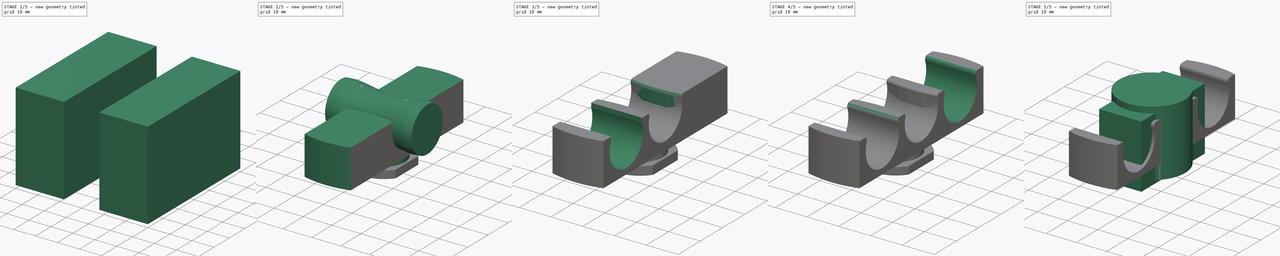
[diagram: build sequence overview — one tinted view per stage of 5, left to right]
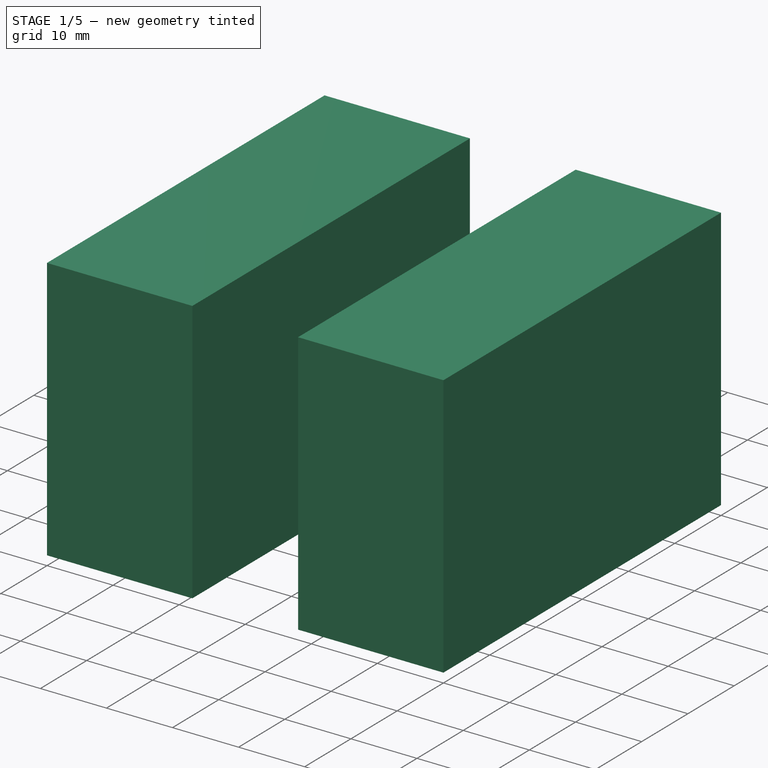
[diagram: stage 1 of 5 — iso view after this stage's code; geometry added in this stage tinted green]
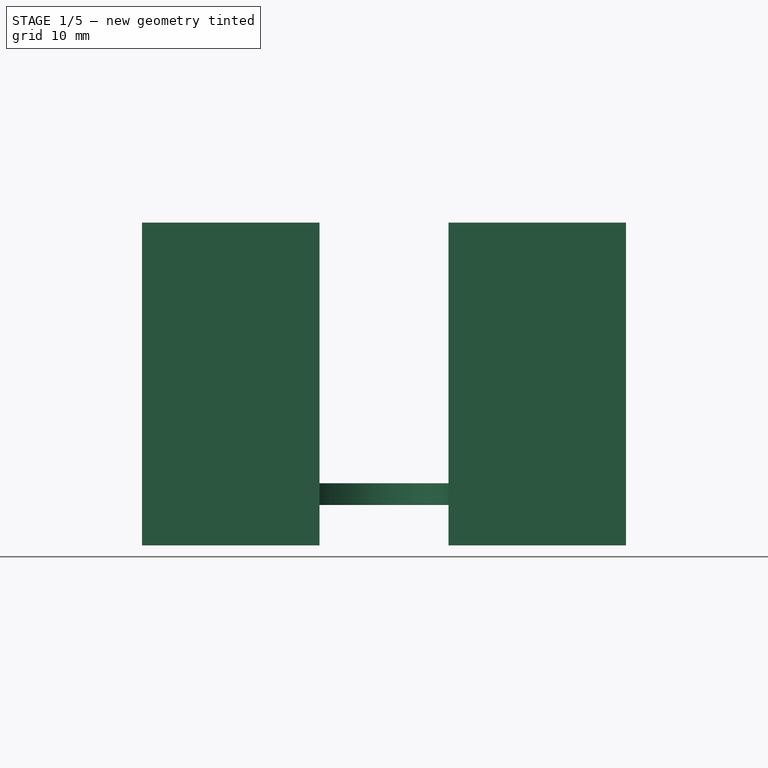
[diagram: stage 1 of 5 — front view after this stage's code; geometry added in this stage tinted green]
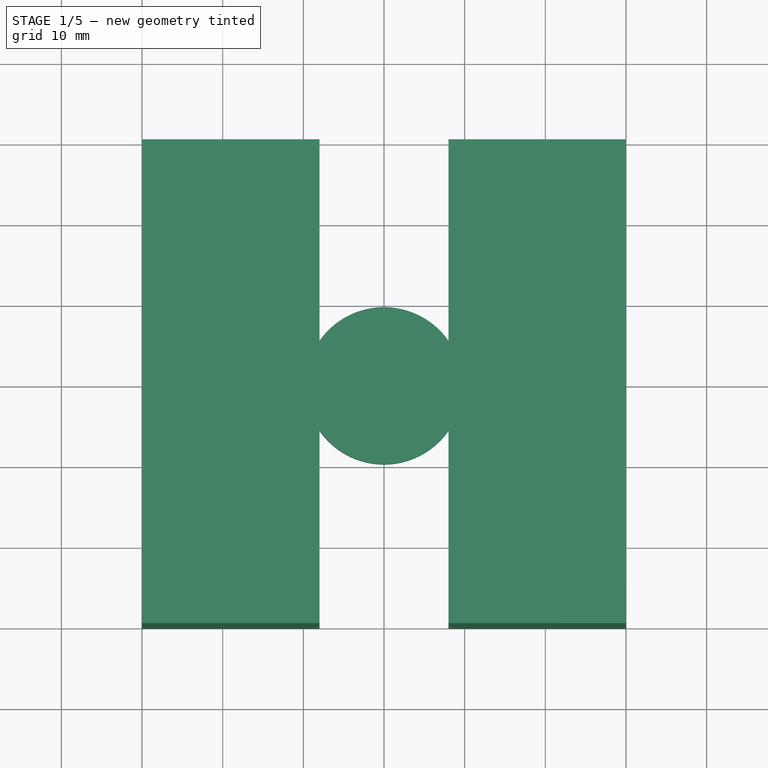
[diagram: stage 1 of 5 — top view after this stage's code; geometry added in this stage tinted green]
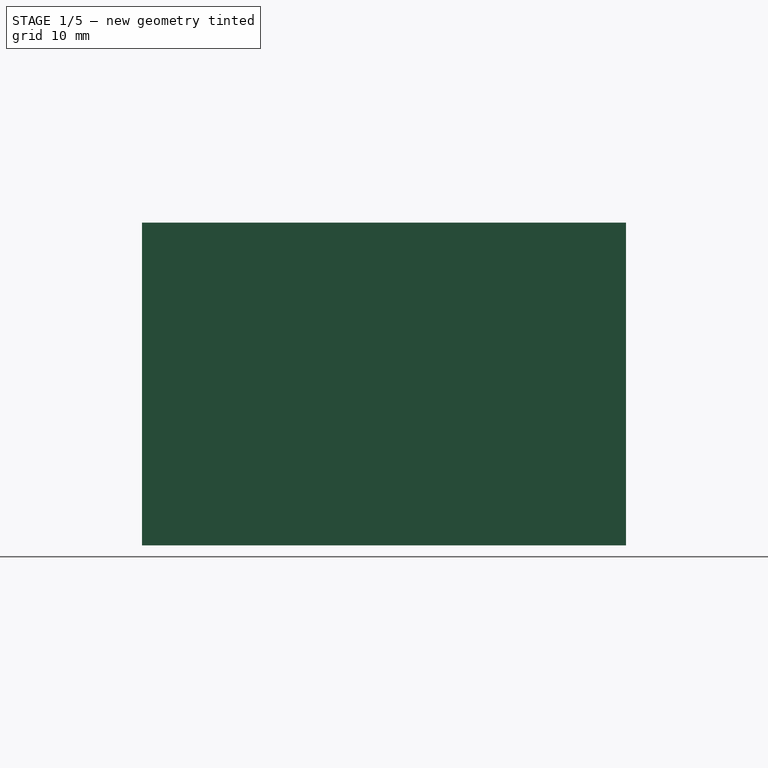
[diagram: stage 1 of 5 — right view after this stage's code; geometry added in this stage tinted green]
FCSTD DOCUMENT  (FreeCAD 0.17R13522 (Git))
Label: soprteCasco2018
License: CreativeCommons Attribution-ShareAlike
LicenseURL: http://creativecommons.org/licenses/by-sa/4.0/
objects: Sketcher::SketchObject×6, Part::Cylinder×5, Part::Fillet×4, Part::MultiFuse×3, Part::Box×3, PartDesign::FeatureBase×2, PartDesign::Body×2, Part::Cut×2, Part::Loft×1, App::Part×1, PartDesign::Pocket×1, PartDesign::Mirrored×1
note: 31 computed .brp shape members not serialized (recipe doc carries the construction recipe); baked Part::Feature solids carry a one-line shape summary decoded from their .brp

FEATURE [Part::Cylinder] Cylinder002  label="Cilindro002"
  Angle = 360
  AttacherType = Attacher::AttachEngine3D
  Height = 2.7
  Radius = 9.75
FEATURE [Part::Box] Box001  label="Cubo001"
  AttacherType = Attacher::AttachEngine3D
  Height = 40
  Length = 22
  Placement = pos=(-30,-30,-5) rot=(0,0,1;0rad)
  Width = 60
FEATURE [Part::Box] Box002  label="Cubo002"
  AttacherType = Attacher::AttachEngine3D
  Height = 40
  Length = 22
  Placement = pos=(8,-30,-5) rot=(0,0,1;0rad)
  Width = 60
FEATURE [Part::MultiFuse] Fusion001  label="rebajesLalterales"
  Refine = true
  Shapes = -> [Box002,Box001]
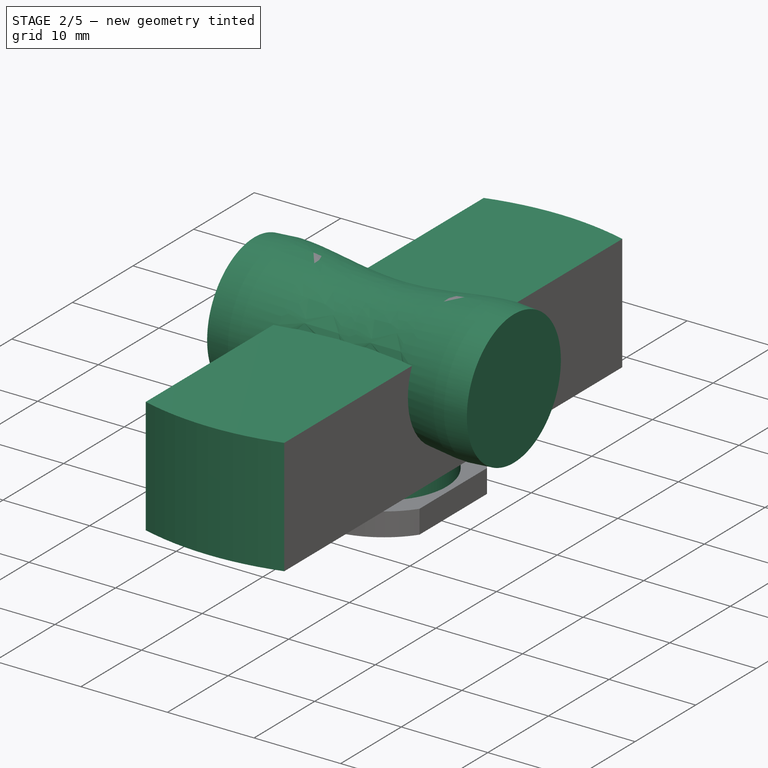
[diagram: stage 2 of 5 — iso view after this stage's code; geometry added in this stage tinted green]
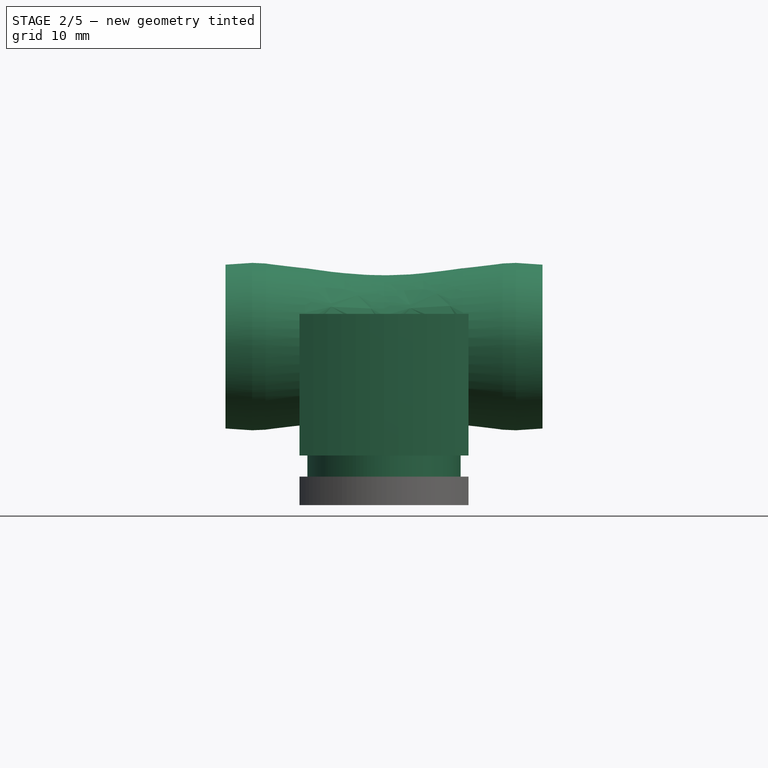
[diagram: stage 2 of 5 — front view after this stage's code; geometry added in this stage tinted green]
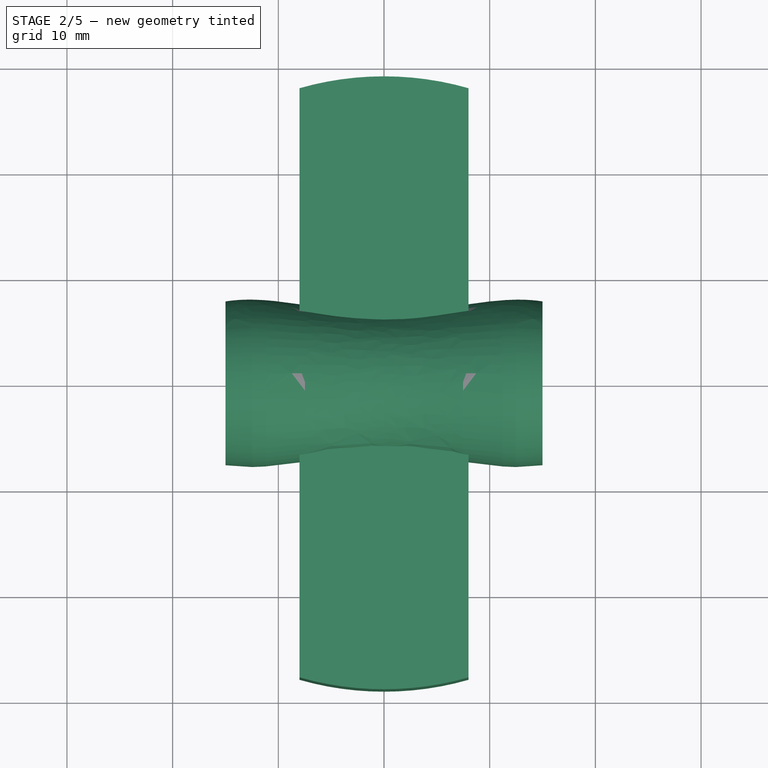
[diagram: stage 2 of 5 — top view after this stage's code; geometry added in this stage tinted green]
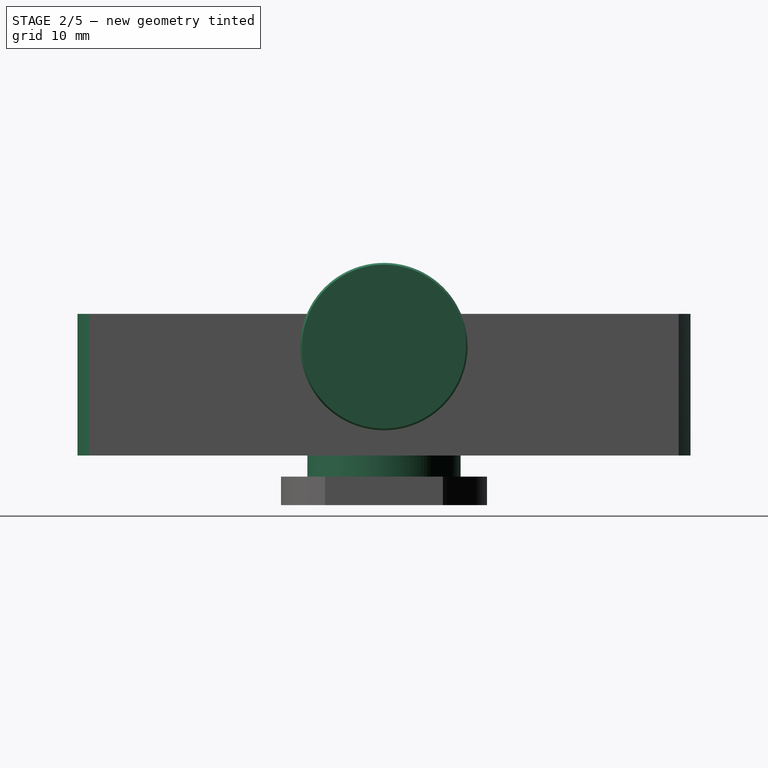
[diagram: stage 2 of 5 — right view after this stage's code; geometry added in this stage tinted green]
FEATURE [Sketcher::SketchObject] Sketch011  label="centro001"
  MapMode = 5
  Placement = pos=(0,0,0) rot=(0.57735,0.57735,0.57735;2.0944rad)
  sketch-geometry (1):
    g0: Circle CenterX=0 CenterY=15 CenterZ=0 NormalX=0 NormalY=0 NormalZ=1 AngleXU=0 Radius=6.75
  constraints (3):
    c: PointOnObject(g0,g-2)
    c: Radius(g0) = 6.75
    c: DistanceY(g-1,g0) = 15
FEATURE [Sketcher::SketchObject] Sketch012  label="fuera003"
  MapMode = 5
  Placement = pos=(10,0,0) rot=(0.57735,0.57735,0.57735;2.0944rad)
  sketch-geometry (1):
    g0: Circle CenterX=0 CenterY=15 CenterZ=0 NormalX=0 NormalY=0 NormalZ=1 AngleXU=0 Radius=7.75
  constraints (3):
    c: PointOnObject(g0,g-2)
    c: DistanceY(g-1,g0) = 15
    c: Radius(g0) = 7.75
FEATURE [Sketcher::SketchObject] Sketch013  label="fuera004"
  MapMode = 5
  Placement = pos=(-10,0,0) rot=(0.57735,0.57735,0.57735;2.0944rad)
  sketch-geometry (1):
    g0: Circle CenterX=0 CenterY=15 CenterZ=0 NormalX=0 NormalY=0 NormalZ=1 AngleXU=0 Radius=7.75
  constraints (3):
    c: PointOnObject(g0,g-2)
    c: DistanceY(g-1,g0) = 15
    c: Radius(g0) = 7.75
FEATURE [Sketcher::SketchObject] Sketch014  label="fuera1_003"
  MapMode = 5
  Placement = pos=(15,0,0) rot=(0.57735,0.57735,0.57735;2.0944rad)
  sketch-geometry (1):
    g0: Circle CenterX=0 CenterY=15 CenterZ=0 NormalX=0 NormalY=0 NormalZ=1 AngleXU=0 Radius=7.75
  constraints (3):
    c: PointOnObject(g0,g-2)
    c: DistanceY(g-1,g0) = 15
    c: Radius(g0) = 7.75
FEATURE [Sketcher::SketchObject] Sketch015  label="fuera2_003"
  MapMode = 5
  Placement = pos=(-15,0,0) rot=(0.57735,0.57735,0.57735;2.0944rad)
  sketch-geometry (1):
    g0: Circle CenterX=0 CenterY=15 CenterZ=0 NormalX=0 NormalY=0 NormalZ=1 AngleXU=0 Radius=7.75
  constraints (3):
    c: PointOnObject(g0,g-2)
    c: DistanceY(g-1,g0) = 15
    c: Radius(g0) = 7.75
FEATURE [Part::Loft] Loft002  label="macho jack"
  Closed = false
  MaxDegree = 5
  Ruled = false
  Sections = -> [Sketch015,Sketch013,Sketch011,Sketch012,Sketch014]
  Solid = true
FEATURE [Part::Cylinder] Cylinder  label="Cilindro"
  Angle = 360
  AttacherType = Attacher::AttachEngine3D
  Height = 13.4
  Placement = pos=(0,0,4.7) rot=(0,0,1;0rad)
  Radius = 29
FEATURE [Part::Cylinder] Cylinder001  label="Cilindro001"
  Angle = 360
  AttacherType = Attacher::AttachEngine3D
  Height = 10
  Radius = 7.25
FEATURE [Part::MultiFuse] Fusion
  Refine = true
  Shapes = -> [Cylinder,Cylinder001,Cylinder002]
FEATURE [Part::Cut] Cut
  Base = -> Fusion
  Refine = true
  Tool = -> Fusion001
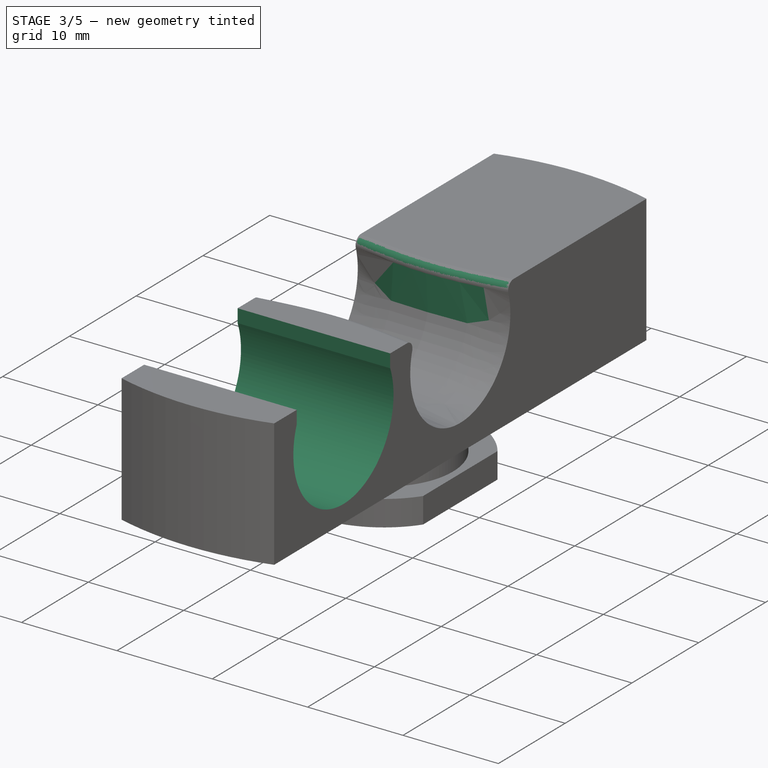
[diagram: stage 3 of 5 — iso view after this stage's code; geometry added in this stage tinted green]
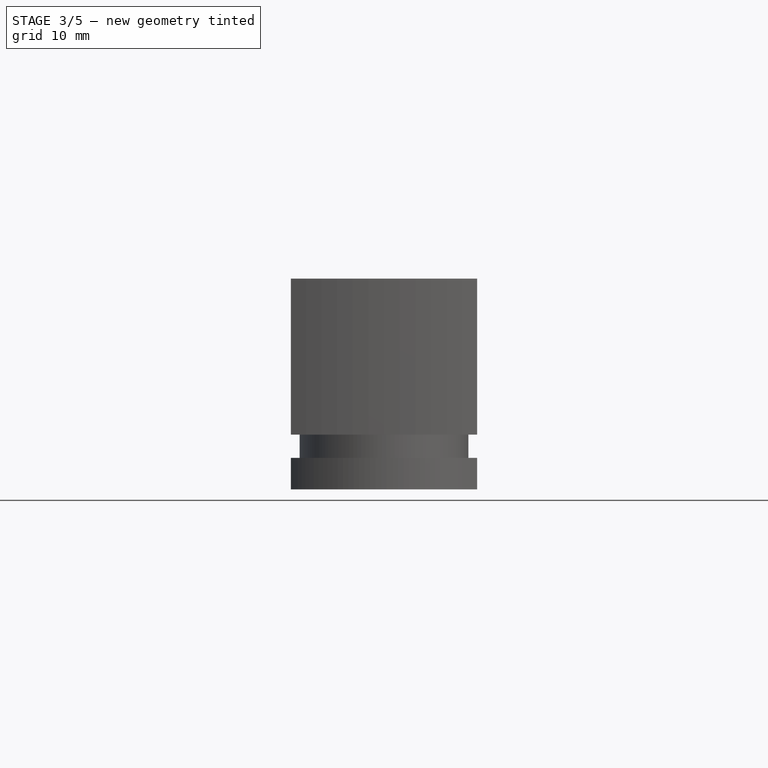
[diagram: stage 3 of 5 — front view after this stage's code; geometry added in this stage tinted green]
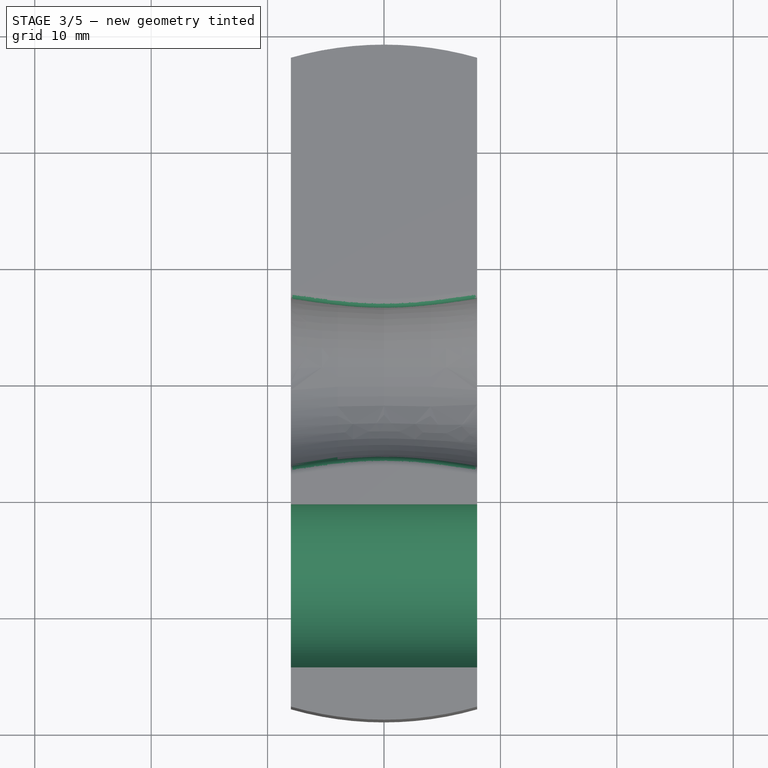
[diagram: stage 3 of 5 — top view after this stage's code; geometry added in this stage tinted green]
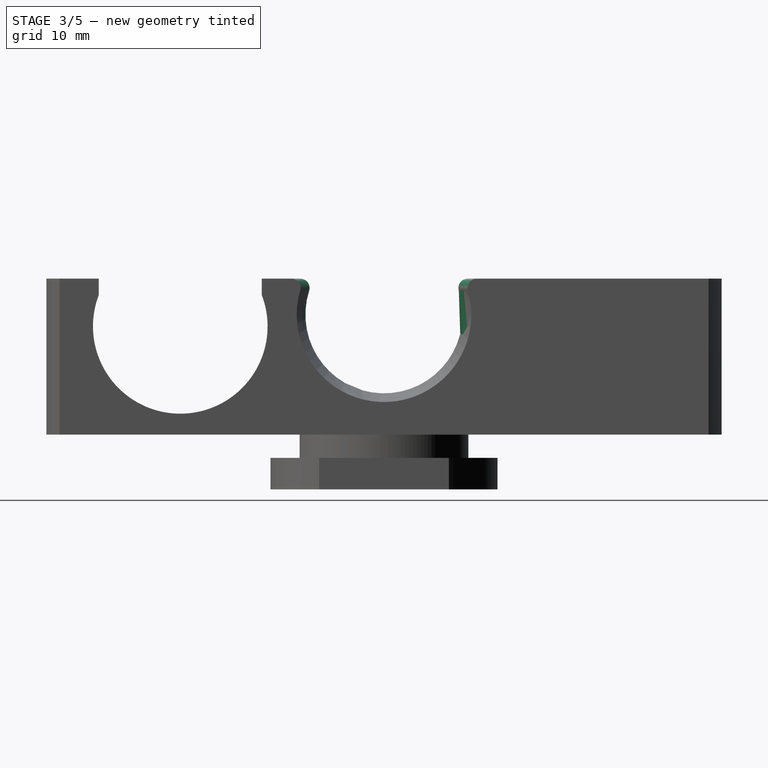
[diagram: stage 3 of 5 — right view after this stage's code; geometry added in this stage tinted green]
FEATURE [Part::Cut] Cut001
  Base = -> Cut
  Refine = true
  Tool = -> Loft002
FEATURE [Part::Fillet] Fillet
  Base = -> Cut001
  Edges = 2 edges r=0.8: [Edge19,Edge20]
FEATURE [PartDesign::FeatureBase] BaseFeature001
  BaseFeature = -> Fillet
FEATURE [Sketcher::SketchObject] Sketch
  MapMode = 5
  Placement = pos=(8,0,0) rot=(0.57735,0.57735,0.57735;2.0944rad)
  Support = -> [BaseFeature001]
  sketch-geometry (4):
    g0: ArcOfCircle CenterX=-17.5 CenterY=14 CenterZ=0 NormalX=0 NormalY=0 NormalZ=1 AngleXU=0 Radius=7.5 StartAngle=2.77438 EndAngle=6.65039
    g1: LineSegment StartX=-24.5 StartY=16.6926 StartZ=0 EndX=-24.5 EndY=23.6926 EndZ=0
    g2: LineSegment StartX=-24.5 StartY=23.6926 StartZ=0 EndX=-10.5 EndY=23.6926 EndZ=0
    g3: LineSegment StartX=-10.5 StartY=23.6926 StartZ=0 EndX=-10.5 EndY=16.6926 EndZ=0
  constraints (13):
    c: Coincident(g1,g2)
    c: Horizontal(g2)
    c: Coincident(g2,g3)
    c: Coincident(g3,g0)
    c: Vertical(g3)
    c: Coincident(g0,g1)
    c: Vertical(g1)
    c: Equal(g1,g3)
    c: DistanceX(g2,g2) = 14
    c: Radius(g0) = 7.5
    c: DistanceY(g-1,g0) = 14
    c: DistanceY(g3,g3) = 7
    c: DistanceX(g0,g-1) = 17.5
FEATURE [PartDesign::Pocket] Pocket
  BaseFeature = -> BaseFeature001
  Length = 5
  Length2 = 100
  Profile = -> Sketch
  Refine = true
  Type = 1
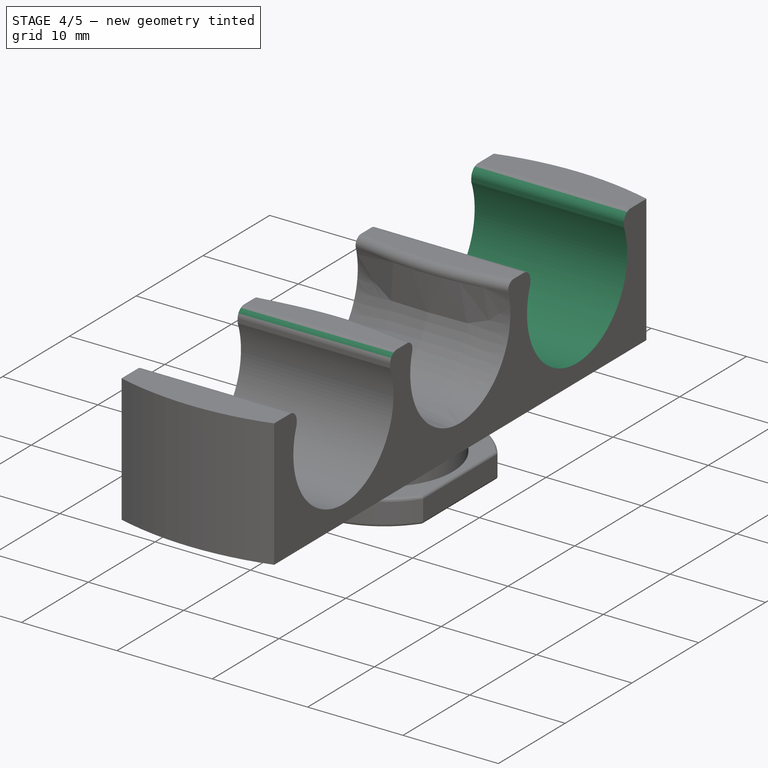
[diagram: stage 4 of 5 — iso view after this stage's code; geometry added in this stage tinted green]
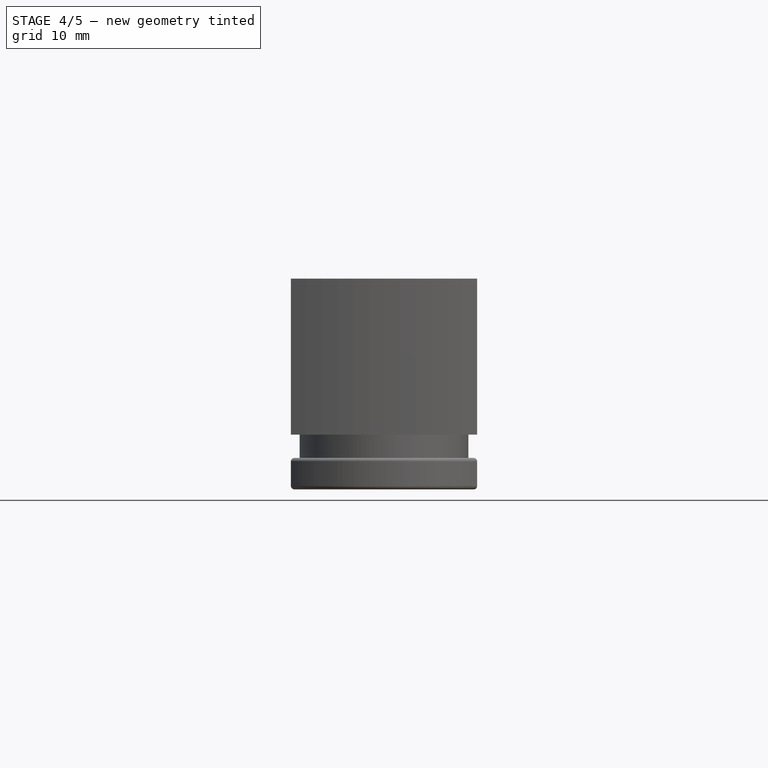
[diagram: stage 4 of 5 — front view after this stage's code; geometry added in this stage tinted green]
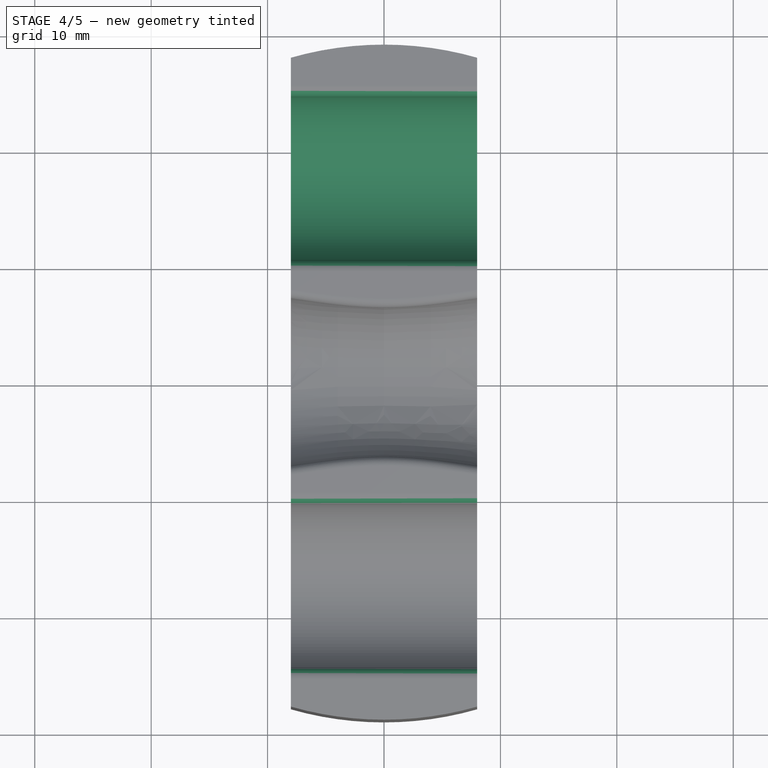
[diagram: stage 4 of 5 — top view after this stage's code; geometry added in this stage tinted green]
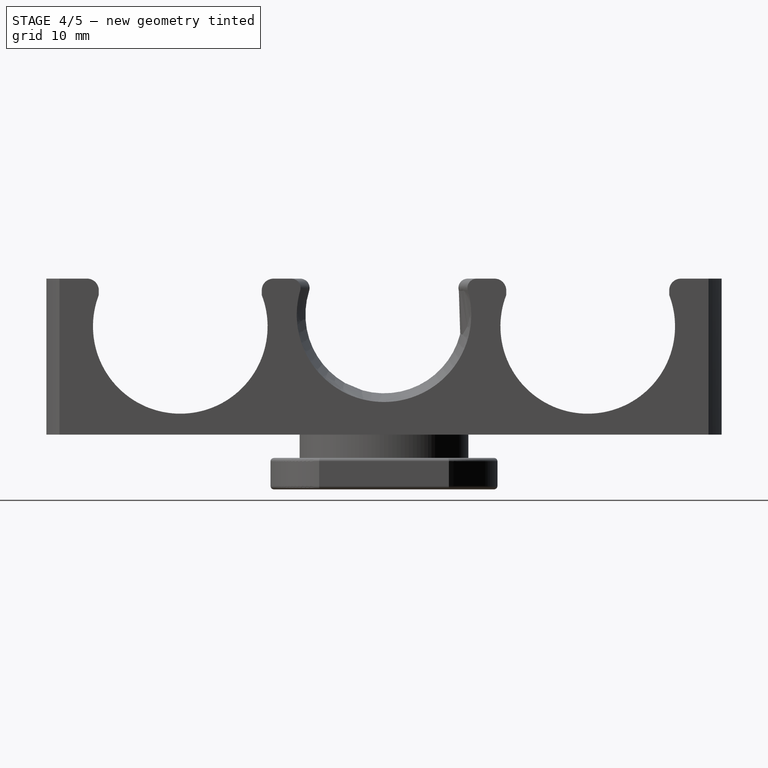
[diagram: stage 4 of 5 — right view after this stage's code; geometry added in this stage tinted green]
FEATURE [Part::Cylinder] Cylinder003  label="Cilindro003"
  Angle = 360
  AttacherType = Attacher::AttachEngine3D
  Height = 2
  Placement = pos=(0,0,-0.5) rot=(0,0,1;0rad)
  Radius = 2
FEATURE [PartDesign::FeatureBase] BaseFeature
  BaseFeature = -> Cylinder003
FEATURE [PartDesign::Mirrored] Mirrored
  BaseFeature = -> Pocket
  MirrorPlane = -> XZ_Plane002
  Originals = -> [Pocket]
  Refine = true
FEATURE [PartDesign::Body] Body
  BaseFeature = -> Fillet
  Group = -> [BaseFeature001,Sketch,Pocket,Mirrored]
  Origin = -> Origin002
  Tip = -> Mirrored
FEATURE [Part::Fillet] Fillet003
  Base = -> Mirrored
  Edges = 4 edges r=1: [Edge19,Edge26,Edge37,Edge42]
FEATURE [Part::Fillet] Fillet004
  Base = -> Fillet003
  Edges = 8 edges r=0.3: [Edge66,Edge67,Edge68,Edge69,Edge71,Edge73,Edge76,Edge77]
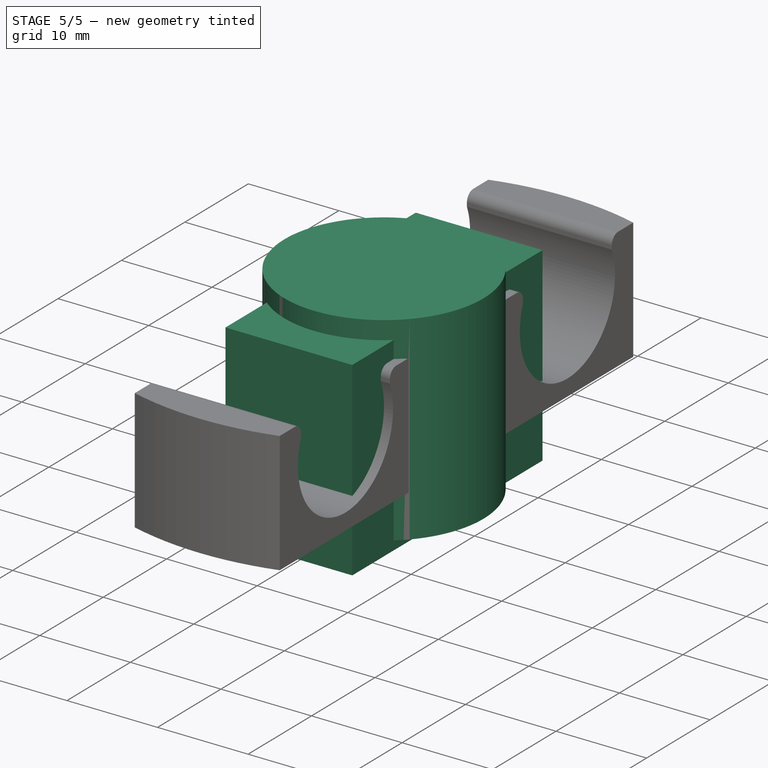
[diagram: stage 5 of 5 — iso view after this stage's code; geometry added in this stage tinted green]
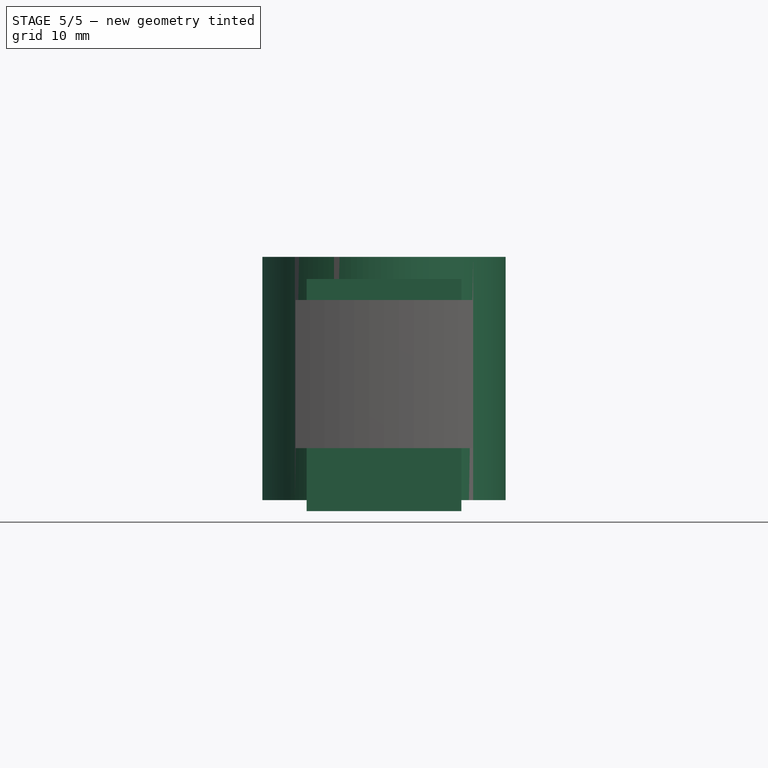
[diagram: stage 5 of 5 — front view after this stage's code; geometry added in this stage tinted green]
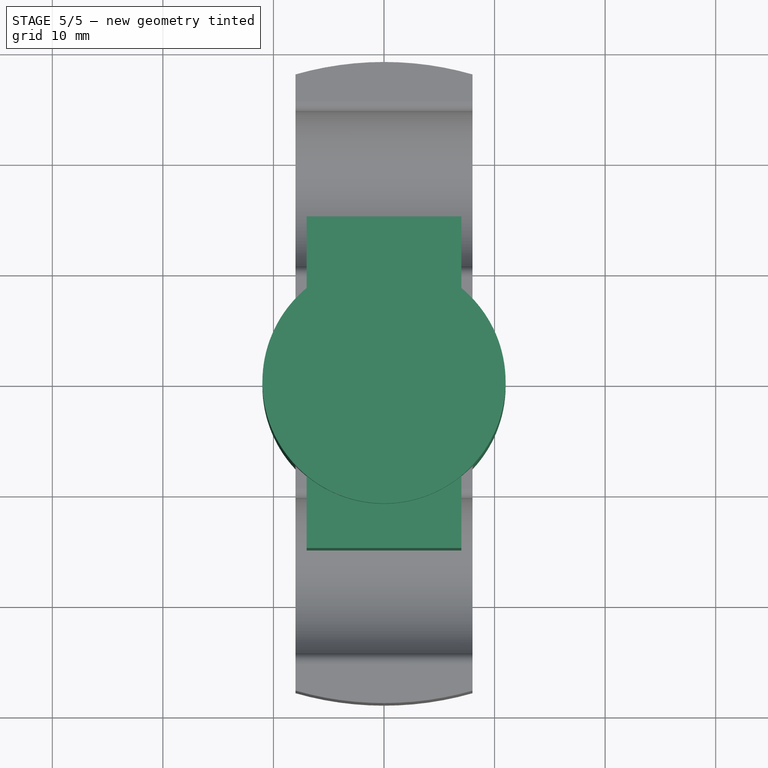
[diagram: stage 5 of 5 — top view after this stage's code; geometry added in this stage tinted green]
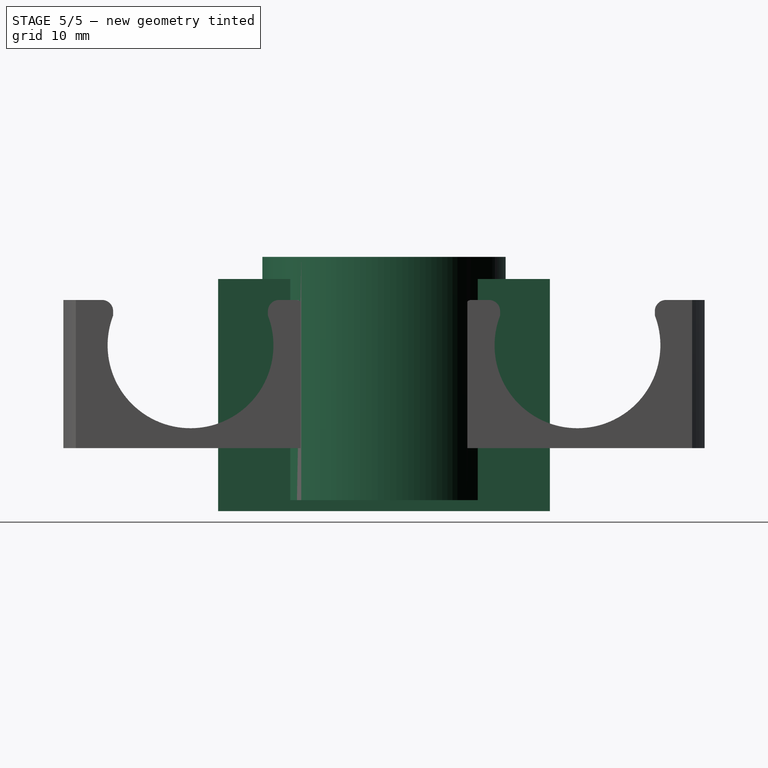
[diagram: stage 5 of 5 — right view after this stage's code; geometry added in this stage tinted green]
FEATURE [Part::Box] Box  label="Cubo"
  AttacherType = Attacher::AttachEngine3D
  Height = 21
  Length = 14
  Placement = pos=(-7,-15,-1) rot=(0,0,1;0rad)
  Width = 30
FEATURE [Part::Cylinder] Cylinder004  label="Cilindro004"
  Angle = 360
  AttacherType = Attacher::AttachEngine3D
  Height = 22
  Radius = 11
FEATURE [PartDesign::Body] Fillet002Body  label="BASEpIN"
  BaseFeature = -> Cylinder003
  Group = -> [BaseFeature]
  Origin = -> Origin001
  Placement = pos=(0,0,-0.5) rot=(0,0,1;0rad)
  Tip = -> BaseFeature
FEATURE [App::Part] Part
  Group = -> [Fusion,Cylinder,Cylinder002,Cylinder001,Sketch012,Loft002,Sketch011,Sketch013,Sketch014,Sketch015,Cylinder003,Fillet002Body]
  License = CC BY 3.0
  LicenseURL = http://creativecommons.org/licenses/by/3.0/
  Origin = -> Origin
FEATURE [Part::Fillet] Fillet002  label="PIN"
  Base = -> BaseFeature
  Edges = 1 edges r=0.5: [Edge3]
  Placement = pos=(0,0,-0.5) rot=(0,0,1;0rad)
FEATURE [Part::MultiFuse] Fusion002
  Refine = true
  Shapes = -> [Fillet004,Fillet002]
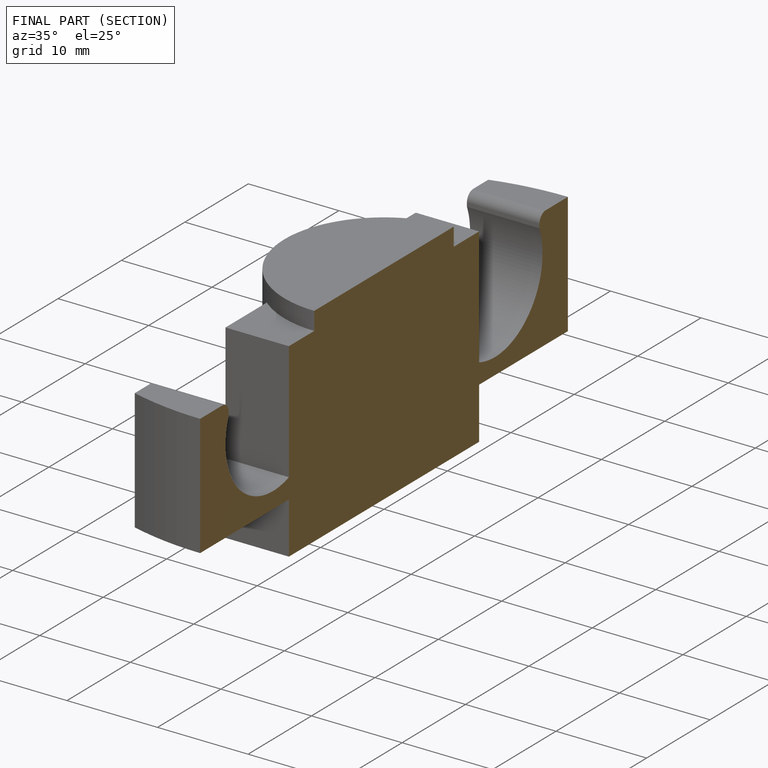
[diagram: finished part — half-section view (interior)]
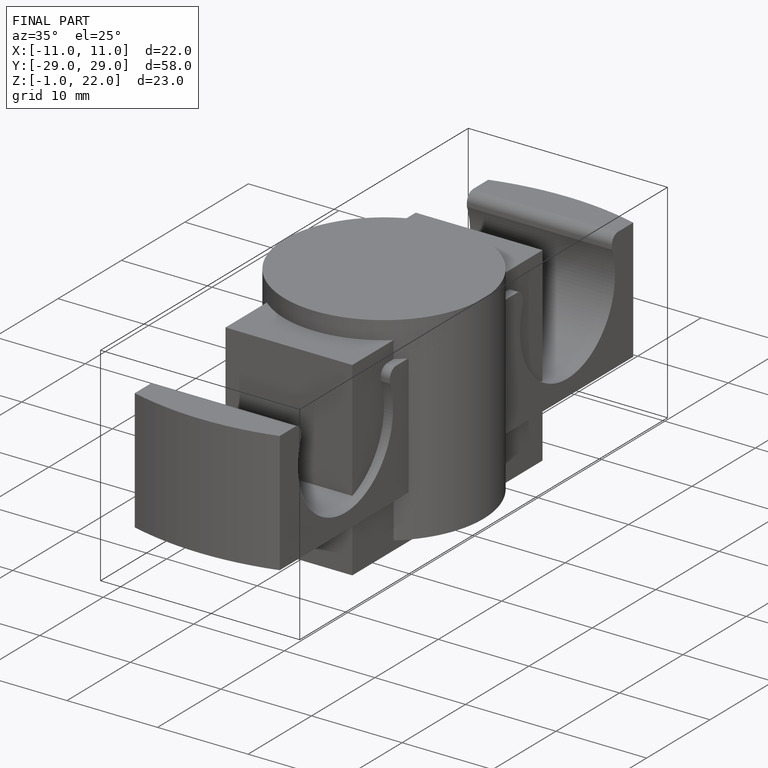
[diagram: finished part — iso view with bounding-box wireframe]
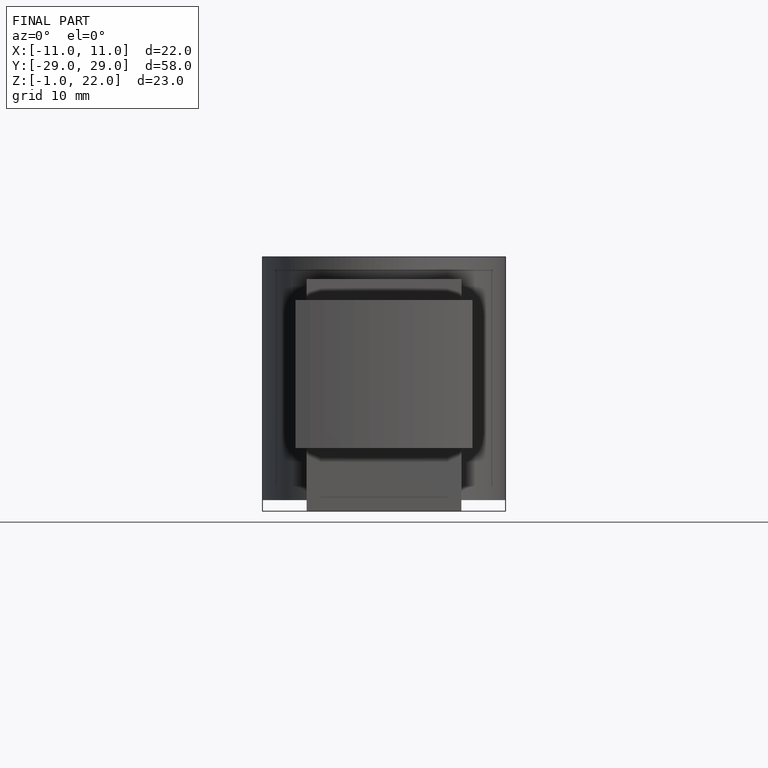
[diagram: finished part — front view with bounding-box wireframe]
